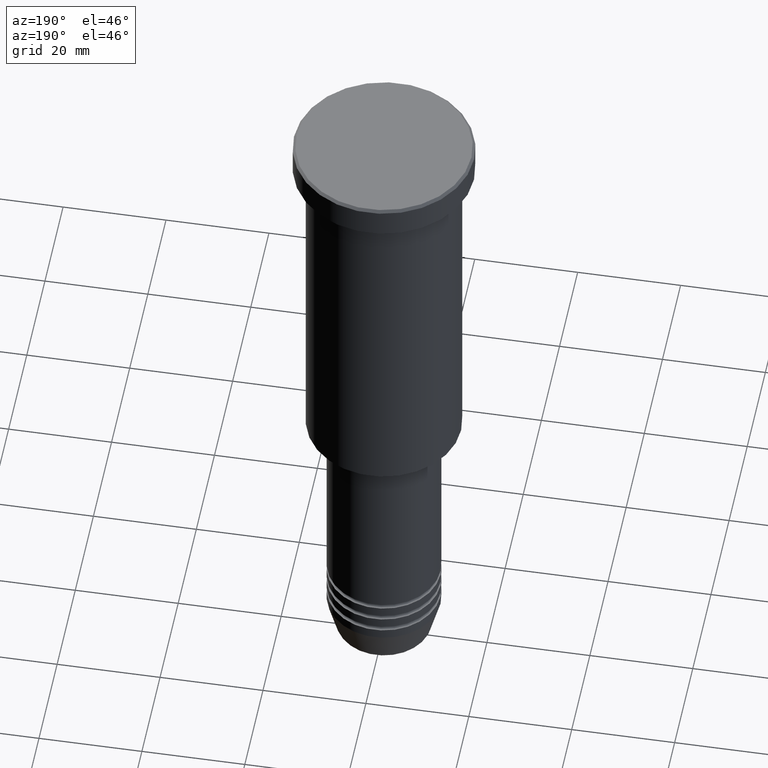
[diagram: clean part render]
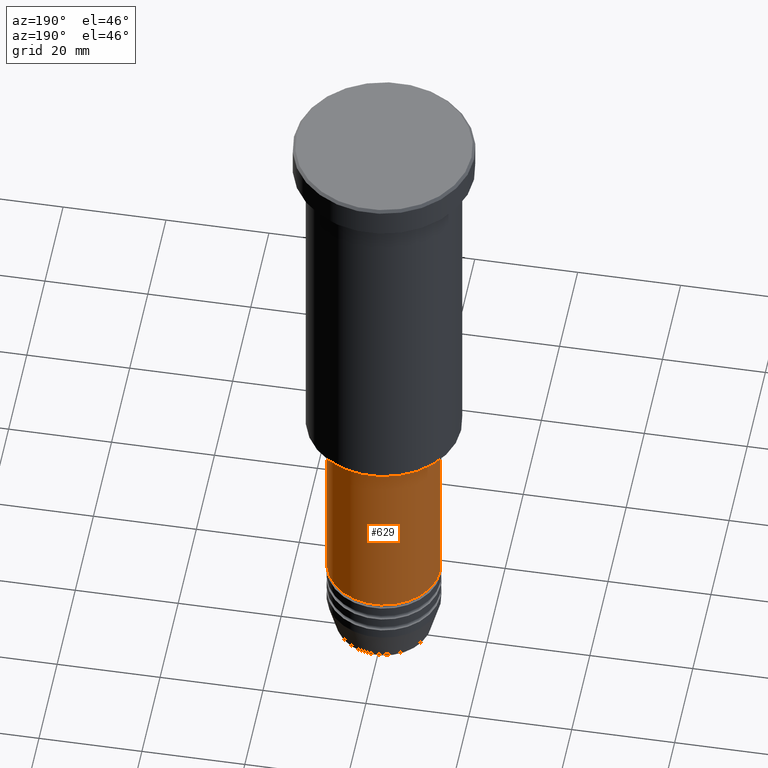
[diagram: same view with one face highlighted and labeled with its STEP entity id]
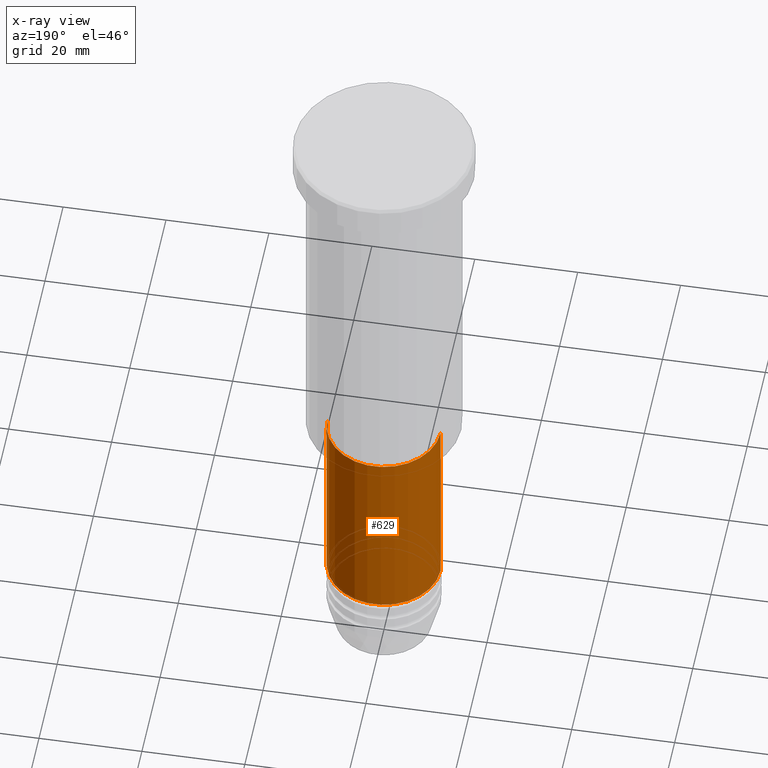
[diagram: x-ray of the same camera — body ghosted, the highlighted face saturated]
A machine part, auxiliary view. The second image highlights one B-rep face of the part: STEP entity #629.
The next image is the same camera in x-ray: the body ghosted, the highlighted face saturated — about 0% of this face is hidden behind the body in this view.
In plain terms, the highlighted cylindrical surface (partial cylindrical patch) has radius 11 mm, axis along (-0, -0, 1).
Its self-contained STEP definition (entity closure, byte-faithful):
#8 = CARTESIAN_POINT ( 'NONE',  ( 11.00000000000000000, 0.000000000000000000, -76.99999999999998579 ) ) ;
#24 = CARTESIAN_POINT ( 'NONE',  ( -11.00000000000000000, 1.347111479062088405E-15, 0.000000000000000000 ) ) ;
#40 = DIRECTION ( 'NONE',  ( 1.000000000000000000, 0.000000000000000000, 0.000000000000000000 ) ) ;
#71 = ORIENTED_EDGE ( 'NONE', *, *, #78, .F. ) ;
#78 = EDGE_CURVE ( 'NONE', #791, #176, #91, .T. ) ;
#91 = LINE ( 'NONE', #380, #965 ) ;
#162 = CARTESIAN_POINT ( 'NONE',  ( 0.000000000000000000, 0.000000000000000000, -76.99999999999998579 ) ) ;
#167 = VERTEX_POINT ( 'NONE', #555 ) ;
#176 = VERTEX_POINT ( 'NONE', #8 ) ;
#190 = DIRECTION ( 'NONE',  ( -0.000000000000000000, -0.000000000000000000, 1.000000000000000000 ) ) ;
#196 = DIRECTION ( 'NONE',  ( -0.000000000000000000, -0.000000000000000000, 1.000000000000000000 ) ) ;
#239 = CARTESIAN_POINT ( 'NONE',  ( 0.000000000000000000, 0.000000000000000000, -114.9999999999999574 ) ) ;
#300 = LINE ( 'NONE', #24, #875 ) ;
#375 = ORIENTED_EDGE ( 'NONE', *, *, #1150, .T. ) ;
#378 = DIRECTION ( 'NONE',  ( 1.000000000000000000, 0.000000000000000000, 0.000000000000000000 ) ) ;
#380 = CARTESIAN_POINT ( 'NONE',  ( 11.00000000000000000, 0.000000000000000000, 0.000000000000000000 ) ) ;
#384 = FACE_OUTER_BOUND ( 'NONE', #768, .T. ) ;
#421 = DIRECTION ( 'NONE',  ( 1.000000000000000000, 0.000000000000000000, 0.000000000000000000 ) ) ;
#462 = DIRECTION ( 'NONE',  ( -0.000000000000000000, -0.000000000000000000, 1.000000000000000000 ) ) ;
#472 = CYLINDRICAL_SURFACE ( 'NONE', #1091, 11.00000000000000000 ) ;
#555 = CARTESIAN_POINT ( 'NONE',  ( -11.00000000000000000, 1.347111479062088405E-15, -114.9999999999999574 ) ) ;
#574 = CIRCLE ( 'NONE', #1093, 11.00000000000000000 ) ;
#602 = ORIENTED_EDGE ( 'NONE', *, *, #1060, .F. ) ;
#610 = VERTEX_POINT ( 'NONE', #745 ) ;
#629 = ADVANCED_FACE ( 'NONE', ( #384 ), #472, .T. ) ;
#666 = CARTESIAN_POINT ( 'NONE',  ( 0.000000000000000000, 0.000000000000000000, 0.000000000000000000 ) ) ;
#723 = ORIENTED_EDGE ( 'NONE', *, *, #904, .T. ) ;
#745 = CARTESIAN_POINT ( 'NONE',  ( -11.00000000000000000, 1.347111479062088405E-15, -76.99999999999998579 ) ) ;
#759 = DIRECTION ( 'NONE',  ( -0.000000000000000000, -0.000000000000000000, 1.000000000000000000 ) ) ;
#768 = EDGE_LOOP ( 'NONE', ( #375, #723, #602, #71 ) ) ;
#776 = DIRECTION ( 'NONE',  ( -0.000000000000000000, -0.000000000000000000, 1.000000000000000000 ) ) ;
#791 = VERTEX_POINT ( 'NONE', #978 ) ;
#861 = AXIS2_PLACEMENT_3D ( 'NONE', #239, #190, #40 ) ;
#875 = VECTOR ( 'NONE', #759, 1000.000000000000000 ) ;
#904 = EDGE_CURVE ( 'NONE', #167, #610, #300, .T. ) ;
#965 = VECTOR ( 'NONE', #196, 1000.000000000000000 ) ;
#978 = CARTESIAN_POINT ( 'NONE',  ( 11.00000000000000000, 0.000000000000000000, -114.9999999999999574 ) ) ;
#1023 = CIRCLE ( 'NONE', #861, 11.00000000000000000 ) ;
#1060 = EDGE_CURVE ( 'NONE', #176, #610, #574, .T. ) ;
#1091 = AXIS2_PLACEMENT_3D ( 'NONE', #666, #462, #378 ) ;
#1093 = AXIS2_PLACEMENT_3D ( 'NONE', #162, #776, #421 ) ;
#1150 = EDGE_CURVE ( 'NONE', #791, #167, #1023, .T. ) ;